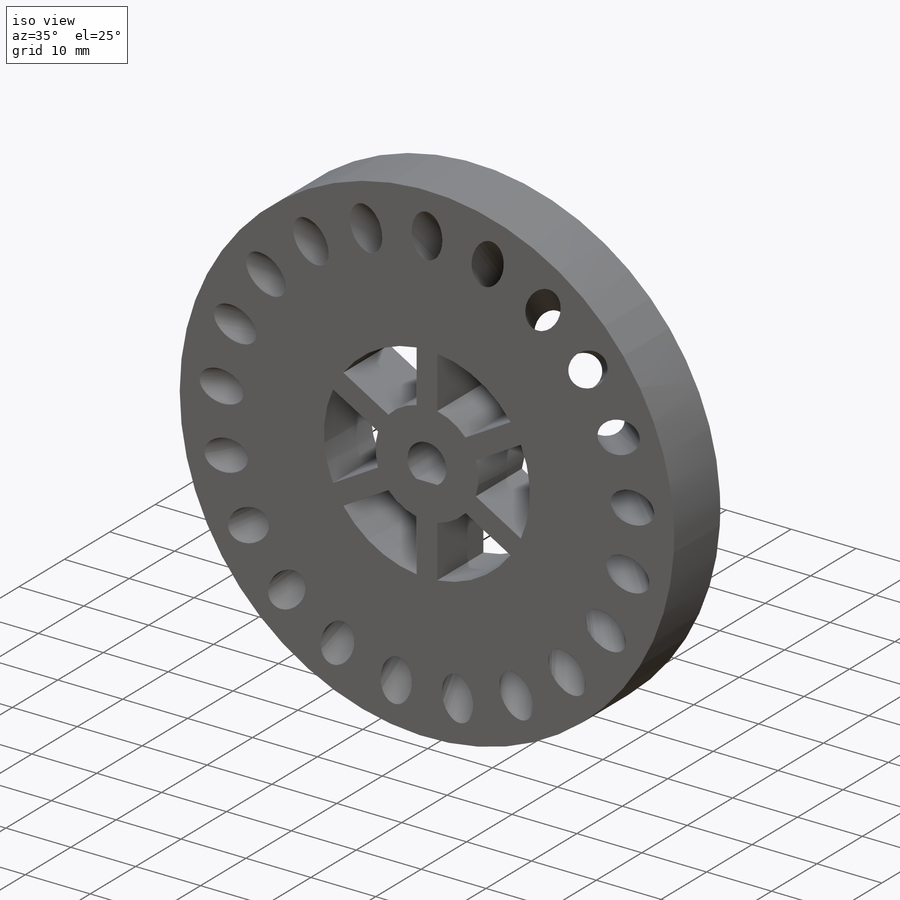
[diagram: iso view]
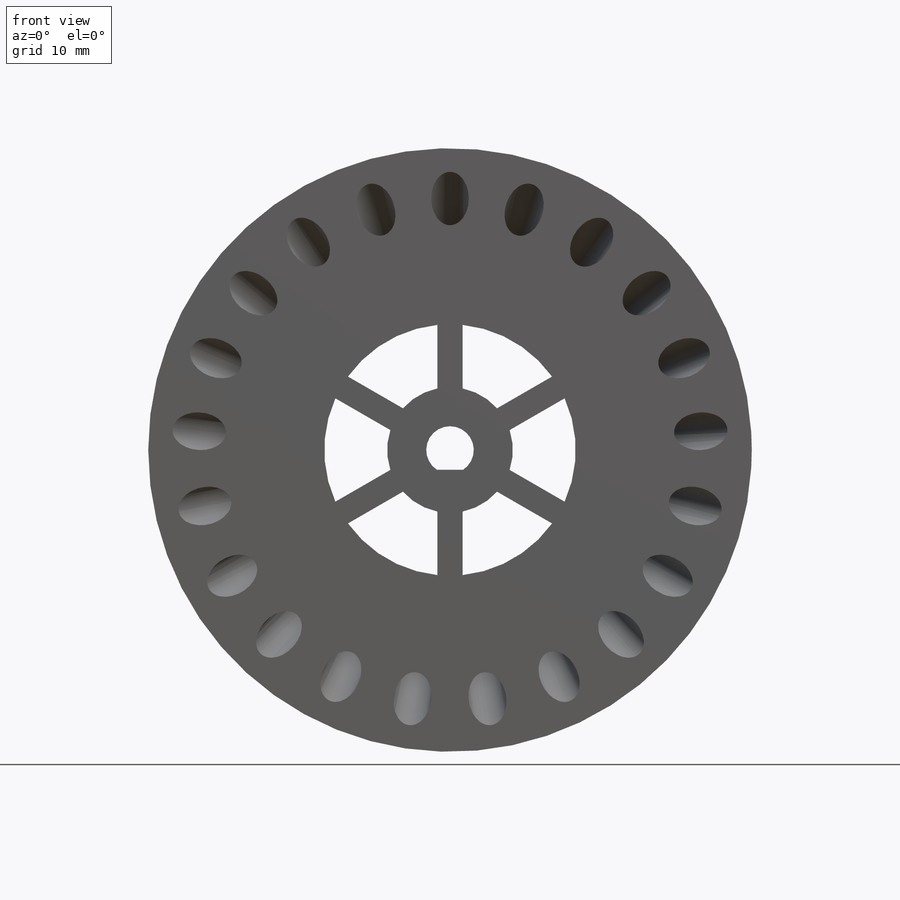
[diagram: front view]
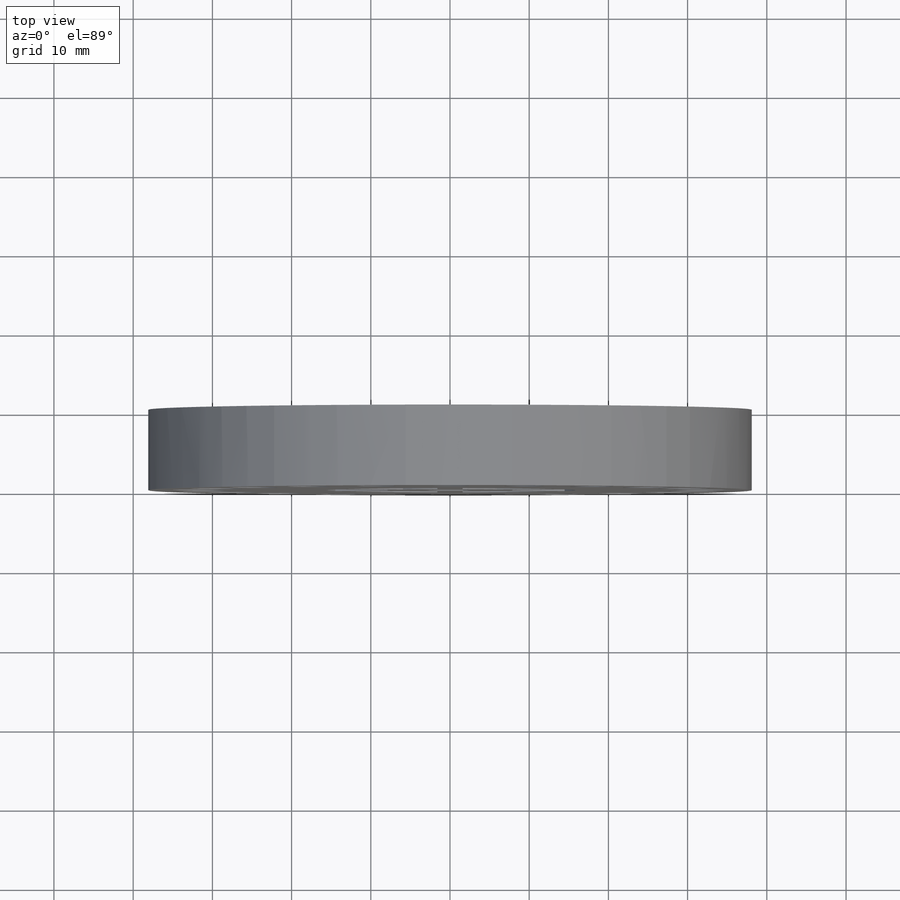
[diagram: top view]
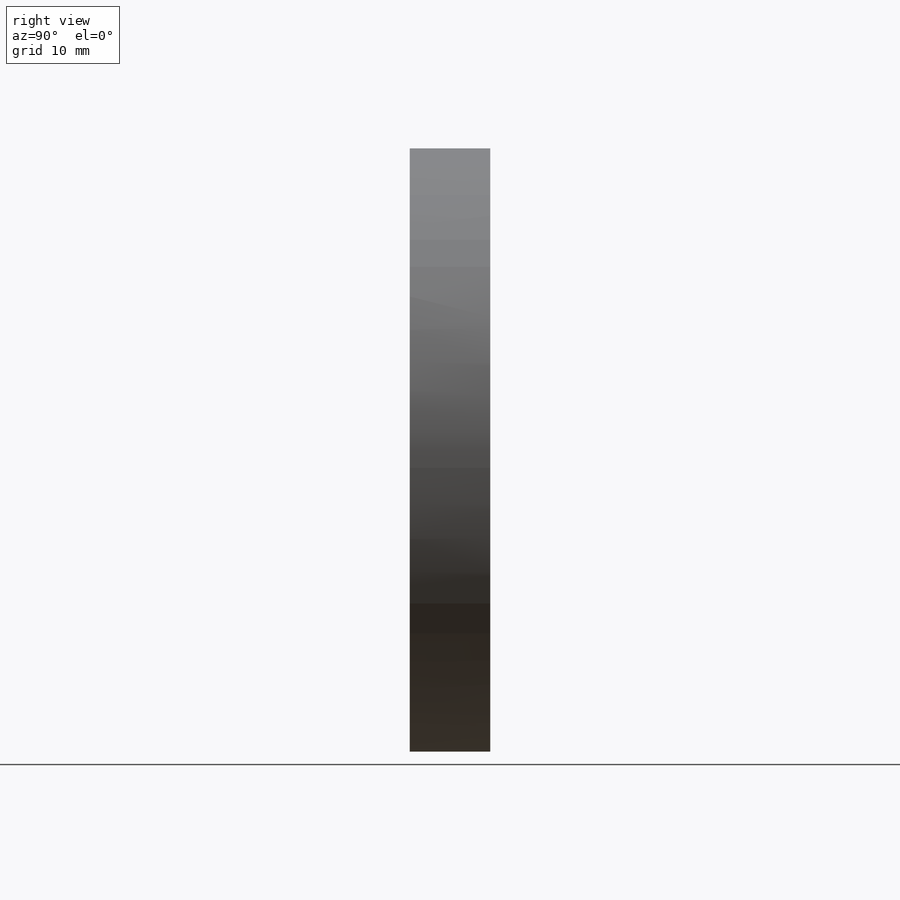
[diagram: right view]
SOLIDWORKS PART (.sldprt)
format: sldprt  version: not decoded by parser v0  size: 305,664 bytes
history: native  units: mm
features: sketch x5, cut_extrude x2, material x1, extrude x1, plane x1, pattern_circular x1, cut_revolve x1 (+13 scaffold rows collapsed)
feature tree (25):
  scaffold x13  (default folders/planes/origin — collapsed)
  material  "Material <not specified>"
  sketch  "Sketch1"  dims[D1=6.0mm D2=76.2mm D3=2.5mm]
  extrude  "Boss-Extrude1"  Depth=10.16mm
  sketch  "Sketch3"  dims[c1.D1=10.16mm c1.D2=10.16mm c1.D3=10.16mm c2.D3=45.0deg c2.D4=26.67mm]
  plane  "Plane1"
  sketch  "Sketch5"  dims[D1=4.7625mm]
  cut_extrude  "Cut-Extrude1"  Depth=6.35mm
  pattern_circular  "CirPattern1"  Count=21 Angle=17.142857deg
  sketch  "Sketch6"  dims[D1=15.875mm D2=31.75mm D3=3.175mm D4=1.5875mm D5=6.0]
  cut_extrude  "Cut-Extrude2"  Depth=18.288mm
  sketch  "Sketch8"  dims[c1.D1=~12.28639mm c2.D1=45.0deg]
  cut_revolve  "Cut-Revolve1"  Angle=360deg
decode coverage: 10 of 10 modeling features carry decoded parameters
note: ~ marks probable driven/reference dimensions
note: suppression state not decoded; provenance and decode notes live in map.json
